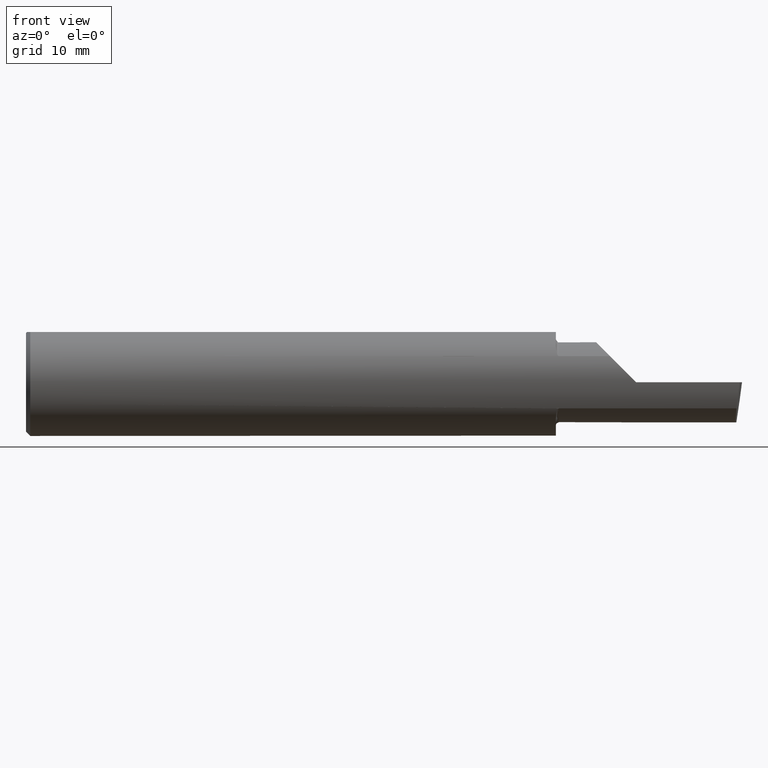
[diagram: clean part render]
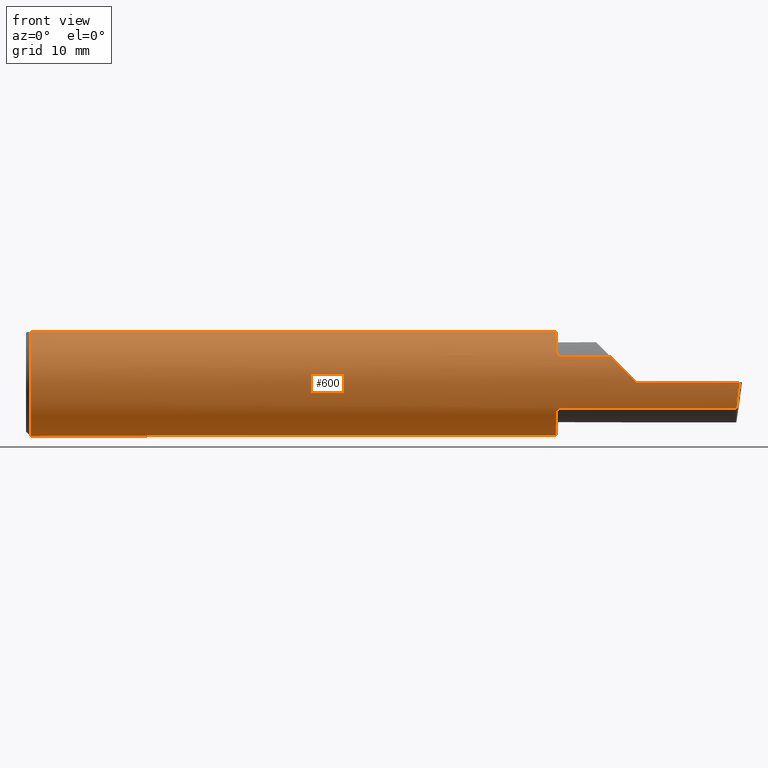
[diagram: same view with one face highlighted and labeled with its STEP entity id]
A machine part, front view. The second image highlights one B-rep face of the part: STEP entity #600.
In plain terms, the highlighted cylindrical surface (partial cylindrical patch) has radius 4.7587 mm, axis along (-1, -0, -0).
Its self-contained STEP definition (entity closure, byte-faithful):
#7 = CARTESIAN_POINT ( 'NONE',  ( 1.850530357231195522, -0.1482623167742068426, 0.1147852156680473495 ) ) ;
#9 = CARTESIAN_POINT ( 'NONE',  ( 2.491672876940991710, -0.1873499999999999888, 6.915950918908297591E-17 ) ) ;
#17 = ORIENTED_EDGE ( 'NONE', *, *, #347, .F. ) ;
#23 = CARTESIAN_POINT ( 'NONE',  ( 2.491672876940991710, -0.1873499999999999888, 6.915950918908297591E-17 ) ) ;
#27 = DIRECTION ( 'NONE',  ( 0.000000000000000000, 1.000000000000000000, 0.000000000000000000 ) ) ;
#29 = EDGE_CURVE ( 'NONE', #118, #619, #276, .T. ) ;
#37 = CARTESIAN_POINT ( 'NONE',  ( 1.855249642630817153, -0.1607705839484630805, -0.09620717711675592920 ) ) ;
#40 = CARTESIAN_POINT ( 'NONE',  ( 2.024999999999999911, -0.1635956445993030084, -0.09130436773856176469 ) ) ;
#41 = VECTOR ( 'NONE', #410, 39.37007874015748143 ) ;
#42 = CARTESIAN_POINT ( 'NONE',  ( 2.097861799102314961, -0.1873500000000000165, 0.03213820089768509858 ) ) ;
#44 = CARTESIAN_POINT ( 'NONE',  ( 0.01499999999999999424, 0.000000000000000000, 0.000000000000000000 ) ) ;
#45 = CARTESIAN_POINT ( 'NONE',  ( 1.856503643436637763, -0.1620795007490428707, -0.09397341491037329575 ) ) ;
#53 = CIRCLE ( 'NONE', #576, 0.1873499999999999888 ) ;
#54 = ORIENTED_EDGE ( 'NONE', *, *, #29, .F. ) ;
#79 = CARTESIAN_POINT ( 'NONE',  ( 2.484117089522337452, -0.1792580844883771007, -0.06324101202936138755 ) ) ;
#89 = CARTESIAN_POINT ( 'NONE',  ( 1.858200855161538323, -0.1632467142437135921, -0.09192985110639206869 ) ) ;
#104 = VERTEX_POINT ( 'NONE', #411 ) ;
#105 = LINE ( 'NONE', #192, #197 ) ;
#106 = B_SPLINE_CURVE_WITH_KNOTS ( 'NONE', 3,
 ( #211, #432, #7, #215, #273, #435, #387, #651, #162, #384, #604, #220 ),
 .UNSPECIFIED., .F., .F.,
 ( 4, 2, 2, 2, 2, 4 ),
 ( 0.0009392928737449068215, 0.001524303482983960841, 0.001816808787603487905, 0.001963061439913248510, 0.002036187766068128704, 0.002109314092223008898 ),
 .UNSPECIFIED. ) ;
#116 = CARTESIAN_POINT ( 'NONE',  ( 1.850000000000000311, -0.1383256097560975062, -0.1263568288047932087 ) ) ;
#118 = VERTEX_POINT ( 'NONE', #198 ) ;
#120 = CARTESIAN_POINT ( 'NONE',  ( 1.850000000000000311, 0.000000000000000000, 0.000000000000000000 ) ) ;
#129 = ORIENTED_EDGE ( 'NONE', *, *, #545, .F. ) ;
#132 = CARTESIAN_POINT ( 'NONE',  ( 1.850000000000000311, -0.1383256097560975062, 0.1263568288047932087 ) ) ;
#136 = CARTESIAN_POINT ( 'NONE',  ( 2.481080296960508580, -0.1635956445993030084, -0.09130436773856176469 ) ) ;
#137 = CARTESIAN_POINT ( 'NONE',  ( 1.850000000000000311, 0.06597272163553663527, 0.1753499999999999781 ) ) ;
#138 = AXIS2_PLACEMENT_3D ( 'NONE', #682, #368, #529 ) ;
#139 = EDGE_CURVE ( 'NONE', #104, #513, #53, .T. ) ;
#141 = CARTESIAN_POINT ( 'NONE',  ( 2.066758987970638284, -0.1792580844883770730, 0.06324101202936138755 ) ) ;
#149 = AXIS2_PLACEMENT_3D ( 'NONE', #120, #507, #27 ) ;
#158 = LINE ( 'NONE', #278, #408 ) ;
#161 = EDGE_LOOP ( 'NONE', ( #503, #666, #504, #214, #334, #383, #129, #621, #552, #17, #283, #54, #268 ) ) ;
#162 = CARTESIAN_POINT ( 'NONE',  ( 1.857002686248069967, -0.1625222757049325228, 0.09320450095779621302 ) ) ;
#163 = EDGE_CURVE ( 'NONE', #319, #513, #473, .T. ) ;
#164 = EDGE_CURVE ( 'NONE', #262, #294, #478, .T. ) ;
#173 = CARTESIAN_POINT ( 'NONE',  ( 1.860000000000000098, -0.1635956445993029251, -0.09130436773856194510 ) ) ;
#176 = CARTESIAN_POINT ( 'NONE',  ( 2.487725449370724817, -0.1873500000000000443, -0.03213820089768506388 ) ) ;
#184 = VERTEX_POINT ( 'NONE', #637 ) ;
#191 = CARTESIAN_POINT ( 'NONE',  ( 1.860000000000000098, -0.1635956445993029529, 0.09130436773856188959 ) ) ;
#192 = CARTESIAN_POINT ( 'NONE',  ( 2.024999999999999911, -0.1635956445993030084, 0.09130436773856176469 ) ) ;
#197 = VECTOR ( 'NONE', #470, 39.37007874015748143 ) ;
#198 = CARTESIAN_POINT ( 'NONE',  ( 1.850000000000000311, -0.1383256097560975062, -0.1263568288047932087 ) ) ;
#211 = CARTESIAN_POINT ( 'NONE',  ( 1.850000000000000311, -0.1383256097560975062, 0.1263568288047932087 ) ) ;
#214 = ORIENTED_EDGE ( 'NONE', *, *, #531, .T. ) ;
#215 = CARTESIAN_POINT ( 'NONE',  ( 1.852291668372491484, -0.1548472237252444261, 0.1055305370847128416 ) ) ;
#220 = CARTESIAN_POINT ( 'NONE',  ( 1.860000000000000098, -0.1635956445993029529, 0.09130436773856188959 ) ) ;
#247 = EDGE_CURVE ( 'NONE', #555, #506, #105, .T. ) ;
#251 = CARTESIAN_POINT ( 'NONE',  ( 1.854627300813618929, -0.1598199155693380280, -0.09778034674766643286 ) ) ;
#256 = AXIS2_PLACEMENT_3D ( 'NONE', #379, #376, #596 ) ;
#258 = CARTESIAN_POINT ( 'NONE',  ( 2.129999999999999893, -0.1873499999999999888, 1.065442715258197396E-16 ) ) ;
#262 = VERTEX_POINT ( 'NONE', #535 ) ;
#267 = EDGE_CURVE ( 'NONE', #277, #184, #158, .T. ) ;
#268 = ORIENTED_EDGE ( 'NONE', *, *, #627, .F. ) ;
#273 = CARTESIAN_POINT ( 'NONE',  ( 1.853030094855348642, -0.1569359418858942423, 0.1023945457153807304 ) ) ;
#276 = CIRCLE ( 'NONE', #149, 0.1873499999999999888 ) ;
#277 = VERTEX_POINT ( 'NONE', #9 ) ;
#278 = CARTESIAN_POINT ( 'NONE',  ( 3.377502344341257155E-32, -0.1873499999999999610, 3.267291166268304703E-16 ) ) ;
#283 = ORIENTED_EDGE ( 'NONE', *, *, #472, .T. ) ;
#294 = VERTEX_POINT ( 'NONE', #173 ) ;
#304 = CARTESIAN_POINT ( 'NONE',  ( 1.856977885846546661, -0.1625039841807085217, -0.09323648621225567867 ) ) ;
#312 = DIRECTION ( 'NONE',  ( -1.000000000000000000, -0.000000000000000000, -0.000000000000000000 ) ) ;
#318 = CARTESIAN_POINT ( 'NONE',  ( 1.850535130224571612, -0.1482744458446705882, -0.1147666934430601887 ) ) ;
#319 = VERTEX_POINT ( 'NONE', #484 ) ;
#334 = ORIENTED_EDGE ( 'NONE', *, *, #247, .F. ) ;
#339 = LINE ( 'NONE', #568, #41 ) ;
#344 = AXIS2_PLACEMENT_3D ( 'NONE', #639, #466, #479 ) ;
#347 = EDGE_CURVE ( 'NONE', #483, #104, #474, .T. ) ;
#353 = DIRECTION ( 'NONE',  ( 0.000000000000000000, 0.000000000000000000, 1.000000000000000000 ) ) ;
#368 = DIRECTION ( 'NONE',  ( -1.000000000000000000, -0.000000000000000000, -0.000000000000000000 ) ) ;
#376 = DIRECTION ( 'NONE',  ( -1.000000000000000000, -0.000000000000000000, -0.000000000000000000 ) ) ;
#379 = CARTESIAN_POINT ( 'NONE',  ( 0.01499999999999999424, 0.000000000000000000, 0.000000000000000000 ) ) ;
#381 = VECTOR ( 'NONE', #312, 39.37007874015748143 ) ;
#383 = ORIENTED_EDGE ( 'NONE', *, *, #393, .F. ) ;
#384 = CARTESIAN_POINT ( 'NONE',  ( 1.858216394543445338, -0.1632528125625389848, 0.09191892236924030513 ) ) ;
#387 = CARTESIAN_POINT ( 'NONE',  ( 1.855270962286581282, -0.1607994114084981829, 0.09615890281982662768 ) ) ;
#393 = EDGE_CURVE ( 'NONE', #487, #555, #106, .T. ) ;
#407 = CARTESIAN_POINT ( 'NONE',  ( 2.038695632261437130, -0.1635956445993029529, 0.09130436773856191734 ) ) ;
#408 = VECTOR ( 'NONE', #429, 39.37007874015748143 ) ;
#410 = DIRECTION ( 'NONE',  ( 1.000000000000000000, 0.000000000000000000, 0.000000000000000000 ) ) ;
#411 = CARTESIAN_POINT ( 'NONE',  ( 0.01499999999999999424, 0.000000000000000000, -0.1873499999999999888 ) ) ;
#414 = CARTESIAN_POINT ( 'NONE',  ( 1.860000000000000098, -0.1635956445993029251, -0.09130436773856194510 ) ) ;
#419 = DIRECTION ( 'NONE',  ( -1.000000000000000000, -6.829619984160658046E-18, -0.000000000000000000 ) ) ;
#422 = EDGE_CURVE ( 'NONE', #262, #277, #629, .T. ) ;
#429 = DIRECTION ( 'NONE',  ( -1.000000000000000000, -0.000000000000000000, -0.000000000000000000 ) ) ;
#432 = CARTESIAN_POINT ( 'NONE',  ( 1.850000000000000533, -0.1434410963562315344, 0.1207567927018307619 ) ) ;
#435 = CARTESIAN_POINT ( 'NONE',  ( 1.854651161669206294, -0.1598575446545091039, 0.09771880834312089703 ) ) ;
#436 = CARTESIAN_POINT ( 'NONE',  ( 1.853013987655237171, -0.1568958379530026870, -0.1024560150687156973 ) ) ;
#454 = CARTESIAN_POINT ( 'NONE',  ( 0.01499999999999997863, -0.06597272163553657975, 0.1753499999999999781 ) ) ;
#466 = DIRECTION ( 'NONE',  ( 1.000000000000000000, 6.829619984160658046E-18, 0.000000000000000000 ) ) ;
#470 = DIRECTION ( 'NONE',  ( 1.000000000000000000, 6.829619984160658046E-18, 0.000000000000000000 ) ) ;
#472 = EDGE_CURVE ( 'NONE', #483, #619, #339, .T. ) ;
#473 = LINE ( 'NONE', #578, #381 ) ;
#474 = CIRCLE ( 'NONE', #256, 0.1873499999999999888 ) ;
#478 = LINE ( 'NONE', #40, #538 ) ;
#479 = DIRECTION ( 'NONE',  ( 0.000000000000000000, 1.000000000000000000, 0.000000000000000000 ) ) ;
#483 = VERTEX_POINT ( 'NONE', #556 ) ;
#484 = CARTESIAN_POINT ( 'NONE',  ( 1.850000000000000311, -0.06597272163553659363, 0.1753499999999999781 ) ) ;
#486 = CARTESIAN_POINT ( 'NONE',  ( 1.852284340146846953, -0.1548226717605716285, -0.1055657780131311618 ) ) ;
#487 = VERTEX_POINT ( 'NONE', #132 ) ;
#503 = ORIENTED_EDGE ( 'NONE', *, *, #164, .F. ) ;
#504 = ORIENTED_EDGE ( 'NONE', *, *, #267, .T. ) ;
#506 = VERTEX_POINT ( 'NONE', #407 ) ;
#507 = DIRECTION ( 'NONE',  ( 1.000000000000000000, 6.829619984160658046E-18, 0.000000000000000000 ) ) ;
#513 = VERTEX_POINT ( 'NONE', #454 ) ;
#529 = DIRECTION ( 'NONE',  ( 0.000000000000000000, 0.000000000000000000, 1.000000000000000000 ) ) ;
#531 = EDGE_CURVE ( 'NONE', #184, #506, #605, .T. ) ;
#535 = CARTESIAN_POINT ( 'NONE',  ( 2.481080296960508580, -0.1635956445993030084, -0.09130436773856176469 ) ) ;
#538 = VECTOR ( 'NONE', #419, 39.37007874015748143 ) ;
#545 = EDGE_CURVE ( 'NONE', #319, #487, #689, .T. ) ;
#552 = ORIENTED_EDGE ( 'NONE', *, *, #139, .F. ) ;
#555 = VERTEX_POINT ( 'NONE', #191 ) ;
#556 = CARTESIAN_POINT ( 'NONE',  ( 0.01499999999999999424, 0.06597272163553663527, 0.1753499999999999781 ) ) ;
#568 = CARTESIAN_POINT ( 'NONE',  ( 0.000000000000000000, 0.06597272163553663527, 0.1753499999999999781 ) ) ;
#575 = CARTESIAN_POINT ( 'NONE',  ( 1.859014641741961738, -0.1635956445993029529, -0.09130436773856194510 ) ) ;
#576 = AXIS2_PLACEMENT_3D ( 'NONE', #44, #635, #353 ) ;
#578 = CARTESIAN_POINT ( 'NONE',  ( 0.000000000000000000, -0.06597272163553657975, 0.1753499999999999781 ) ) ;
#587 = CARTESIAN_POINT ( 'NONE',  ( 2.038695632261437130, -0.1635956445993029529, 0.09130436773856191734 ) ) ;
#596 = DIRECTION ( 'NONE',  ( 0.000000000000000000, 0.000000000000000000, 1.000000000000000000 ) ) ;
#600 = ADVANCED_FACE ( 'NONE', ( #634 ), #636, .T. ) ;
#604 = CARTESIAN_POINT ( 'NONE',  ( 1.859029114488072842, -0.1635956446012896415, 0.09130436773500356928 ) ) ;
#605 =( BOUNDED_CURVE ( )  B_SPLINE_CURVE ( 3, ( #258, #42, #141, #587 ),
 .UNSPECIFIED., .F., .T. ) 
 B_SPLINE_CURVE_WITH_KNOTS ( ( 4, 4 ),
 ( 4.712388980384689674, 5.221437360734125122 ),
 .UNSPECIFIED. ) 
 CURVE ( )  GEOMETRIC_REPRESENTATION_ITEM ( )  RATIONAL_B_SPLINE_CURVE ( ( 1.000000000000000000, 0.9785221379938656705, 0.9785221379938656705, 1.000000000000000000 ) ) 
 REPRESENTATION_ITEM ( '' )  );
#619 = VERTEX_POINT ( 'NONE', #137 ) ;
#621 = ORIENTED_EDGE ( 'NONE', *, *, #163, .T. ) ;
#627 = EDGE_CURVE ( 'NONE', #294, #118, #681, .T. ) ;
#629 =( BOUNDED_CURVE ( )  B_SPLINE_CURVE ( 3, ( #136, #79, #176, #23 ),
 .UNSPECIFIED., .F., .T. ) 
 B_SPLINE_CURVE_WITH_KNOTS ( ( 4, 4 ),
 ( 0.8516985021657650368, 1.360746882515200484 ),
 .UNSPECIFIED. ) 
 CURVE ( )  GEOMETRIC_REPRESENTATION_ITEM ( )  RATIONAL_B_SPLINE_CURVE ( ( 1.000000000000000000, 0.9785221379938656705, 0.9785221379938656705, 1.000000000000000000 ) ) 
 REPRESENTATION_ITEM ( '' )  );
#634 = FACE_OUTER_BOUND ( 'NONE', #161, .T. ) ;
#635 = DIRECTION ( 'NONE',  ( -1.000000000000000000, -0.000000000000000000, -0.000000000000000000 ) ) ;
#636 = CYLINDRICAL_SURFACE ( 'NONE', #138, 0.1873499999999999888 ) ;
#637 = CARTESIAN_POINT ( 'NONE',  ( 2.129999999999999893, -0.1873499999999999888, 1.065442715258197396E-16 ) ) ;
#639 = CARTESIAN_POINT ( 'NONE',  ( 1.850000000000000311, 0.000000000000000000, 0.000000000000000000 ) ) ;
#651 = CARTESIAN_POINT ( 'NONE',  ( 1.856530533518345294, -0.1621041320318381274, 0.09393089788995188927 ) ) ;
#653 = CARTESIAN_POINT ( 'NONE',  ( 1.850000000000000533, -0.1434457138613161875, -0.1207517378170855221 ) ) ;
#666 = ORIENTED_EDGE ( 'NONE', *, *, #422, .T. ) ;
#681 = B_SPLINE_CURVE_WITH_KNOTS ( 'NONE', 3,
 ( #414, #575, #89, #304, #45, #37, #251, #436, #486, #318, #653, #116 ),
 .UNSPECIFIED., .F., .F.,
 ( 4, 2, 2, 2, 2, 4 ),
 ( 1.968964099585697359E-07, 7.414172666648550939E-05, 0.0001480865569230124454, 0.0002959762174360593785, 0.0005917555384621507510, 0.001183314180514336966 ),
 .UNSPECIFIED. ) ;
#682 = CARTESIAN_POINT ( 'NONE',  ( 0.000000000000000000, 0.000000000000000000, 0.000000000000000000 ) ) ;
#689 = CIRCLE ( 'NONE', #344, 0.1873499999999999888 ) ;